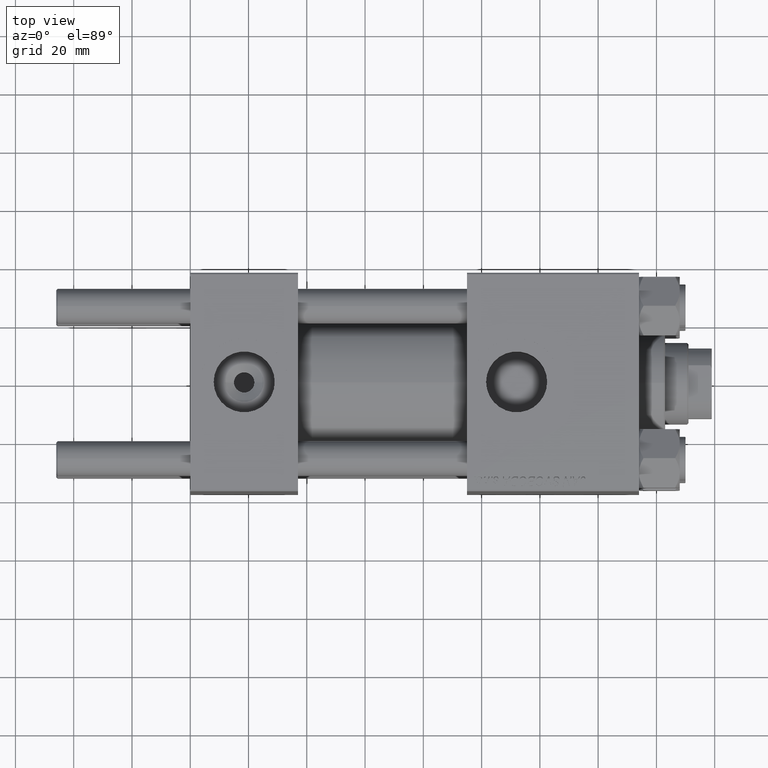
[diagram: clean part render]
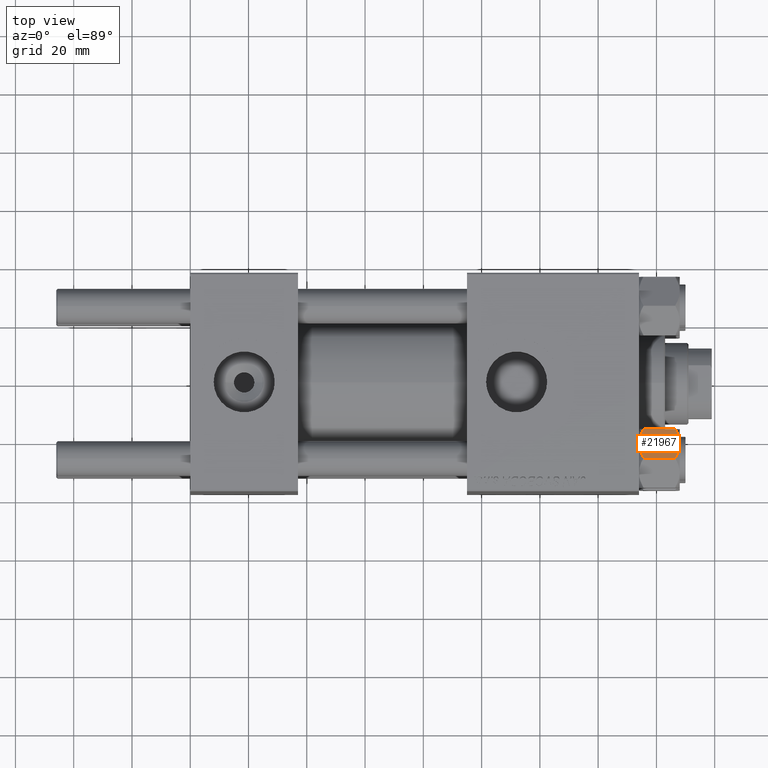
[diagram: same view with one face highlighted and labeled with its STEP entity id]
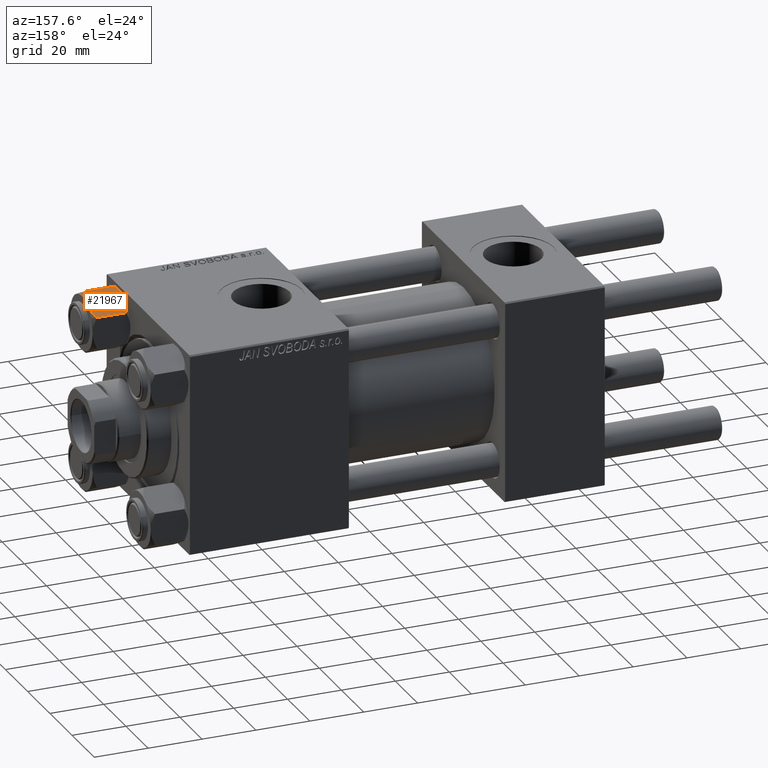
[diagram: same view with one face highlighted and labeled with its STEP entity id]
A machine part, top view. The second image highlights one B-rep face of the part: STEP entity #21967.
A second angle (auxiliary view) of the same face is appended — the face is thin or edge-on in the first view.
In plain terms, the highlighted planar face has unit normal (-0, -0.5, -0.866).
Its self-contained STEP definition (entity closure, byte-faithful):
#2269 = PLANE ( 'NONE',  #35726 ) ;
#2671 = CARTESIAN_POINT ( 'NONE',  ( 5.809999999999994280, 10.06321519197518377, -12.44321519197517389 ) ) ;
#2980 = DIRECTION ( 'NONE',  ( -0.000000000000000000, -0.000000000000000000, 1.000000000000000000 ) ) ;
#4415 = CARTESIAN_POINT ( 'NONE',  ( 7.700834831386342394, 6.788193195293096949, -13.80960203119265017 ) ) ;
#5015 = ORIENTED_EDGE ( 'NONE', *, *, #11644, .F. ) ;
#5369 = LINE ( 'NONE', #18206, #31379 ) ;
#5652 = CARTESIAN_POINT ( 'NONE',  ( 11.61999999999999922, 7.035126978385350964E-15, -12.44321519197517922 ) ) ;
#6857 = CARTESIAN_POINT ( 'NONE',  ( 9.729165168613654657, 3.275021996682086378, -0.1903979688073500487 ) ) ;
#7690 = VERTEX_POINT ( 'NONE', #35174 ) ;
#8215 = CARTESIAN_POINT ( 'NONE',  ( 10.69662495661650148, 1.599332489581338113, -13.28854452935654074 ) ) ;
#8344 = CARTESIAN_POINT ( 'NONE',  ( 5.809999999999994280, 10.06321519197518377, -12.44321519197517389 ) ) ;
#9347 = DIRECTION ( 'NONE',  ( 0.5000000000000002220, -0.8660254037844384856, 0.000000000000000000 ) ) ;
#9570 = DIRECTION ( 'NONE',  ( -0.000000000000000000, -0.000000000000000000, 1.000000000000000000 ) ) ;
#10607 = EDGE_CURVE ( 'NONE', #34852, #18504, #37994, .T. ) ;
#11498 = CARTESIAN_POINT ( 'NONE',  ( 6.265545725125281074, 9.274186850887387479, -12.89876091710045891 ) ) ;
#11644 = EDGE_CURVE ( 'NONE', #44978, #34852, #5369, .T. ) ;
#11756 = CARTESIAN_POINT ( 'NONE',  ( 8.460569896449612770, 5.472293462311864864, -13.99999999999998934 ) ) ;
#11822 = ORIENTED_EDGE ( 'NONE', *, *, #36077, .F. ) ;
#12839 = EDGE_CURVE ( 'NONE', #14967, #48809, #46677, .T. ) ;
#14964 = CARTESIAN_POINT ( 'NONE',  ( 10.69859855102500923, 1.595914123792269601, -0.7141438259524722776 ) ) ;
#14967 = VERTEX_POINT ( 'NONE', #2671 ) ;
#18206 = CARTESIAN_POINT ( 'NONE',  ( 11.61999999999999922, 7.017202701192663836E-15, -14.00000000000000000 ) ) ;
#18248 = CARTESIAN_POINT ( 'NONE',  ( 5.809999999999995168, 10.06321519197518377, -14.00000000000000000 ) ) ;
#18504 = VERTEX_POINT ( 'NONE', #35430 ) ;
#19991 = CARTESIAN_POINT ( 'NONE',  ( 11.61999999999999922, 7.035126978385350964E-15, -12.44321519197517922 ) ) ;
#20681 = ORIENTED_EDGE ( 'NONE', *, *, #47063, .F. ) ;
#21967 = ADVANCED_FACE ( 'NONE', ( #37609 ), #2269, .F. ) ;
#22571 = CARTESIAN_POINT ( 'NONE',  ( 9.227666995912100489, 4.143642311704127223, -0.03994118060691630862 ) ) ;
#22600 = CARTESIAN_POINT ( 'NONE',  ( 6.265018354709772197, 9.275100283241449972, -1.101766453314962924 ) ) ;
#22829 = CARTESIAN_POINT ( 'NONE',  ( 8.969430103550385169, 4.590921729663316242, -5.293955920339376330E-15 ) ) ;
#23416 = B_SPLINE_CURVE_WITH_KNOTS ( 'NONE', 3,
 ( #24954, #44062, #48246, #8215, #24183, #19991 ),
 .UNSPECIFIED., .F., .F.,
 ( 4, 2, 4 ),
 ( 0.006022845781655595046, 0.009013049135303638493, 0.01200325248895168194 ),
 .UNSPECIFIED. ) ;
#24183 = CARTESIAN_POINT ( 'NONE',  ( 11.16498164529021864, 0.7881149087337363524, -12.89823354668503974 ) ) ;
#24954 = CARTESIAN_POINT ( 'NONE',  ( 8.714999999999994529, 5.031607595987588333, -14.00000000000000000 ) ) ;
#29520 = B_SPLINE_CURVE_WITH_KNOTS ( 'NONE', 3,
 ( #8344, #11498, #47600, #31895, #4415, #47851, #11756, #43930 ),
 .UNSPECIFIED., .F., .F.,
 ( 4, 2, 2, 4 ),
 ( 2.544312114902182352E-07, 0.003011550106433543827, 0.004517197944044569653, 0.006022845781655595046 ),
 .UNSPECIFIED. ) ;
#29658 = CARTESIAN_POINT ( 'NONE',  ( 8.209704053696574633, 5.906805847843728863, -5.031375706690544014E-15 ) ) ;
#31379 = VECTOR ( 'NONE', #9570, 1000.000000000000000 ) ;
#31895 = CARTESIAN_POINT ( 'NONE',  ( 7.455303369716803630, 7.213466161761386886, -13.69973261901325223 ) ) ;
#33188 = CARTESIAN_POINT ( 'NONE',  ( 5.809999999999995168, 10.06321519197518377, -1.556784808024826106 ) ) ;
#33817 = B_SPLINE_CURVE_WITH_KNOTS ( 'NONE', 3,
 ( #41709, #29658, #45630, #38314, #22600, #50083 ),
 .UNSPECIFIED., .F., .F.,
 ( 4, 2, 4 ),
 ( 0.006022845781655580301, 0.009013049135303631554, 0.01200325248895168020 ),
 .UNSPECIFIED. ) ;
#34852 = VERTEX_POINT ( 'NONE', #51080 ) ;
#35174 = CARTESIAN_POINT ( 'NONE',  ( 8.714999999999994529, 5.031607595987588333, -14.00000000000000000 ) ) ;
#35430 = CARTESIAN_POINT ( 'NONE',  ( 8.714999999999994529, 5.031607595987588333, 0.000000000000000000 ) ) ;
#35726 = AXIS2_PLACEMENT_3D ( 'NONE', #18248, #37343, #9347 ) ;
#36077 = EDGE_CURVE ( 'NONE', #7690, #44978, #23416, .T. ) ;
#37234 = CARTESIAN_POINT ( 'NONE',  ( 11.61999999999999922, 7.247075248837498561E-15, -1.556784808024820999 ) ) ;
#37343 = DIRECTION ( 'NONE',  ( -0.8660254037844385966, -0.5000000000000003331, 0.000000000000000000 ) ) ;
#37609 = FACE_OUTER_BOUND ( 'NONE', #44537, .T. ) ;
#37994 = B_SPLINE_CURVE_WITH_KNOTS ( 'NONE', 3,
 ( #37234, #50561, #14964, #41678, #6857, #22571, #22829, #38796 ),
 .UNSPECIFIED., .F., .F.,
 ( 4, 2, 2, 4 ),
 ( 2.544312114899127210E-07, 0.003011550106433536454, 0.004517197944044559245, 0.006022845781655580301 ),
 .UNSPECIFIED. ) ;
#38314 = CARTESIAN_POINT ( 'NONE',  ( 6.733375043383494685, 8.463882702393844326, -0.7114554706434600417 ) ) ;
#38534 = EDGE_CURVE ( 'NONE', #14967, #7690, #29520, .T. ) ;
#38738 = ORIENTED_EDGE ( 'NONE', *, *, #12839, .T. ) ;
#38796 = CARTESIAN_POINT ( 'NONE',  ( 8.714999999999994529, 5.031607595987588333, 0.000000000000000000 ) ) ;
#38841 = CARTESIAN_POINT ( 'NONE',  ( 5.809999999999995168, 10.06321519197518377, -14.00000000000000000 ) ) ;
#41678 = CARTESIAN_POINT ( 'NONE',  ( 9.974696630283194310, 2.849749030213796885, -0.3002673809867452137 ) ) ;
#41709 = CARTESIAN_POINT ( 'NONE',  ( 8.714999999999994529, 5.031607595987588333, 0.000000000000000000 ) ) ;
#42996 = ORIENTED_EDGE ( 'NONE', *, *, #10607, .F. ) ;
#43930 = CARTESIAN_POINT ( 'NONE',  ( 8.714999999999994529, 5.031607595987588333, -14.00000000000000000 ) ) ;
#44062 = CARTESIAN_POINT ( 'NONE',  ( 9.220295946303428636, 4.156409344131457573, -13.99999999999999822 ) ) ;
#44537 = EDGE_LOOP ( 'NONE', ( #45563, #38738, #20681, #42996, #5015, #11822 ) ) ;
#44978 = VERTEX_POINT ( 'NONE', #5652 ) ;
#45563 = ORIENTED_EDGE ( 'NONE', *, *, #38534, .F. ) ;
#45630 = CARTESIAN_POINT ( 'NONE',  ( 7.713000053756304375, 6.767122412062953174, -0.1545239700039927888 ) ) ;
#46677 = LINE ( 'NONE', #38841, #47295 ) ;
#47063 = EDGE_CURVE ( 'NONE', #18504, #48809, #33817, .T. ) ;
#47295 = VECTOR ( 'NONE', #2980, 1000.000000000000000 ) ;
#47600 = CARTESIAN_POINT ( 'NONE',  ( 6.731401448974984270, 8.467301068182921497, -13.28585617404752384 ) ) ;
#47851 = CARTESIAN_POINT ( 'NONE',  ( 8.202333004087895674, 5.919572880271055659, -13.96005881939308502 ) ) ;
#48246 = CARTESIAN_POINT ( 'NONE',  ( 9.716999946243698005, 3.296092779912230153, -13.84547602999601068 ) ) ;
#48809 = VERTEX_POINT ( 'NONE', #33188 ) ;
#50083 = CARTESIAN_POINT ( 'NONE',  ( 5.809999999999995168, 10.06321519197518377, -1.556784808024826106 ) ) ;
#50561 = CARTESIAN_POINT ( 'NONE',  ( 11.16445427487471775, 0.7890283410878045078, -1.101239082899540200 ) ) ;
#51080 = CARTESIAN_POINT ( 'NONE',  ( 11.61999999999999922, 7.247075248837498561E-15, -1.556784808024820999 ) ) ;